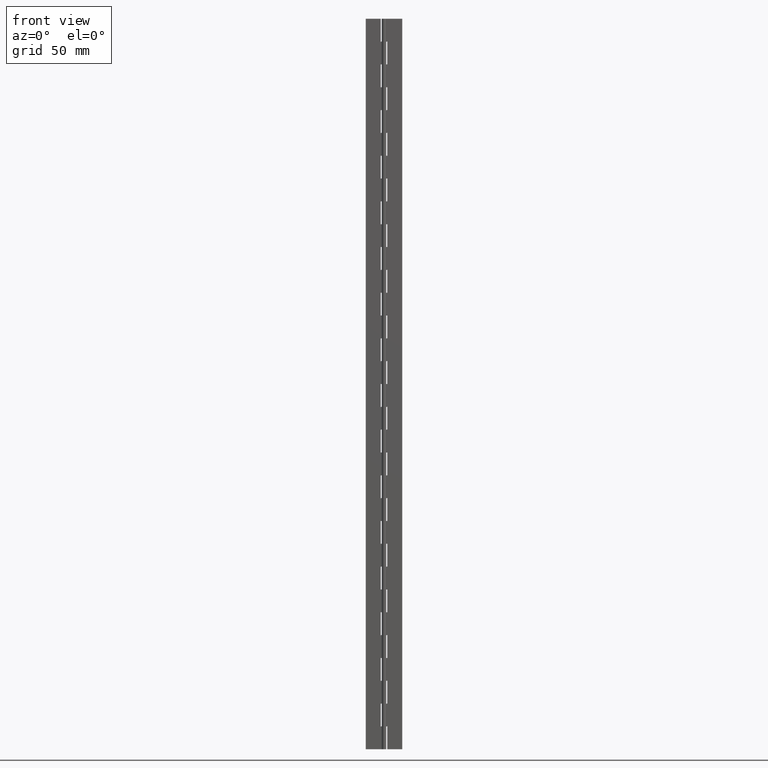
[diagram: clean part render]
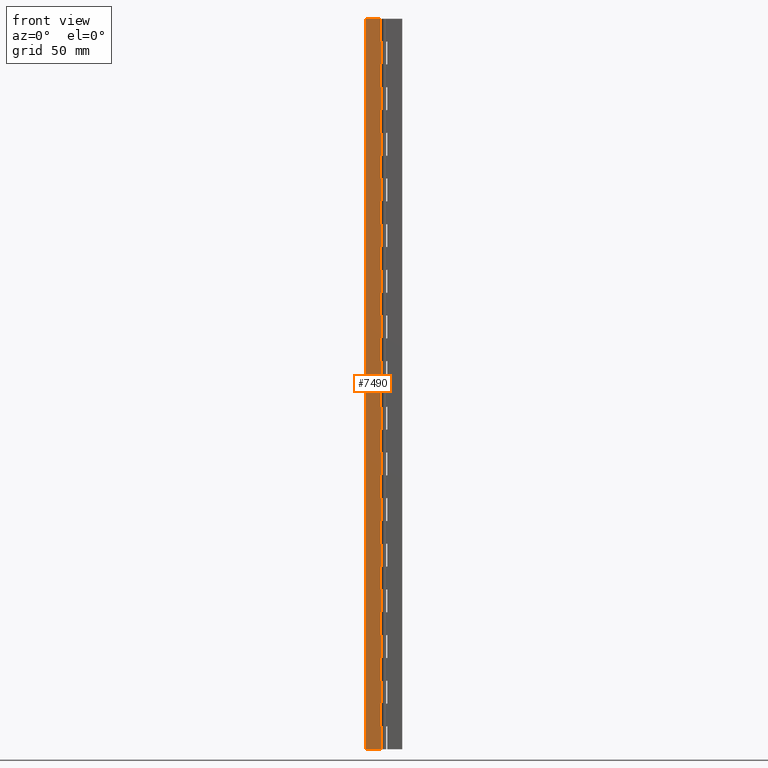
[diagram: same view with one face highlighted and labeled with its STEP entity id]
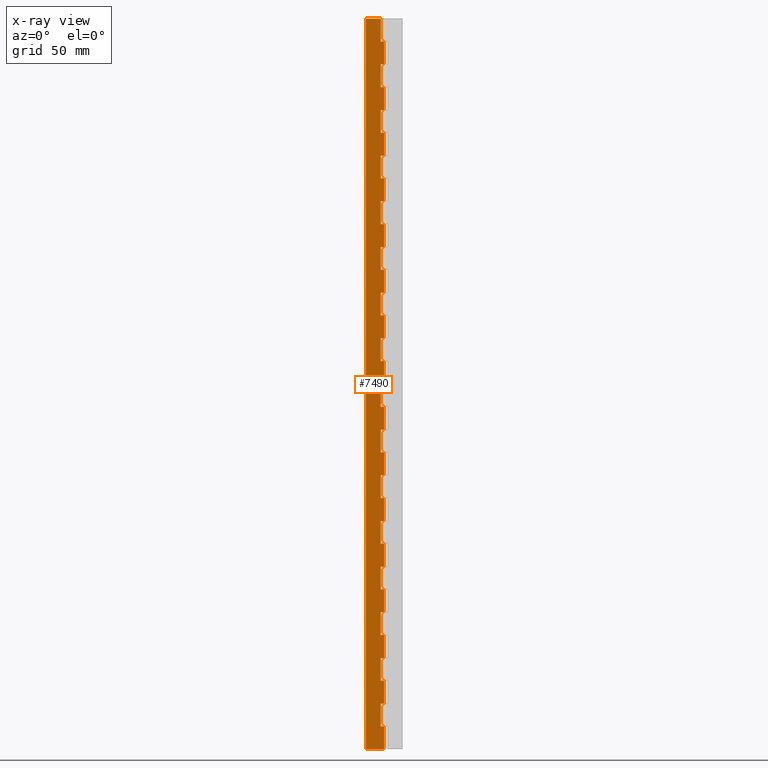
[diagram: x-ray of the same camera — body ghosted, the highlighted face saturated]
A machine part, front view. The second image highlights one B-rep face of the part: STEP entity #7490.
The next image is the same camera in x-ray: the body ghosted, the highlighted face saturated — about 0% of this face is hidden behind the body in this view.
In plain terms, the highlighted face is a freeform B-spline surface patch.
Its self-contained STEP definition (entity closure, byte-faithful):
#4516=CARTESIAN_POINT('',(-1.800003000000000,0.750000000000028,387.500000000000000));
#4517=VERTEX_POINT('',#4516);
#4523=CARTESIAN_POINT('',(4.592507E-017,0.750000000000000,387.500000000000000));
#4524=VERTEX_POINT('',#4523);
#4525=CARTESIAN_POINT('',(-1.800003000000000,0.750000000000028,387.500000000000000));
#4526=CARTESIAN_POINT('',(4.592507E-017,0.750000000000000,387.500000000000000));
#4527=QUASI_UNIFORM_CURVE('',1,(#4525,#4526),.UNSPECIFIED.,.F.,.U.);
#4528=EDGE_CURVE('',#4517,#4524,#4527,.T.);
#4564=CARTESIAN_POINT('',(-1.800003000000000,0.750000000000028,400.0));
#4565=VERTEX_POINT('',#4564);
#4566=CARTESIAN_POINT('',(-1.800003000000000,0.750000000000028,400.0));
#4567=CARTESIAN_POINT('',(-1.800003000000000,0.750000000000028,387.500000000000000));
#4568=QUASI_UNIFORM_CURVE('',1,(#4566,#4567),.UNSPECIFIED.,.F.,.U.);
#4569=EDGE_CURVE('',#4565,#4517,#4568,.T.);
#4622=CARTESIAN_POINT('',(-1.800003000000000,0.750000000000000,362.500000000000000));
#4623=VERTEX_POINT('',#4622);
#4629=CARTESIAN_POINT('',(4.592507E-017,0.750000000000000,362.500000000000000));
#4630=VERTEX_POINT('',#4629);
#4631=CARTESIAN_POINT('',(-1.800003000000000,0.750000000000000,362.500000000000000));
#4632=CARTESIAN_POINT('',(4.592507E-017,0.750000000000000,362.500000000000000));
#4633=QUASI_UNIFORM_CURVE('',1,(#4631,#4632),.UNSPECIFIED.,.F.,.U.);
#4634=EDGE_CURVE('',#4623,#4630,#4633,.T.);
#4700=CARTESIAN_POINT('',(4.592507E-017,0.750000000000000,375.0));
#4701=VERTEX_POINT('',#4700);
#4721=CARTESIAN_POINT('',(-1.800003000000000,0.750000000000028,375.0));
#4722=VERTEX_POINT('',#4721);
#4723=CARTESIAN_POINT('',(4.592507E-017,0.750000000000000,375.0));
#4724=CARTESIAN_POINT('',(-1.800003000000000,0.750000000000028,375.0));
#4725=QUASI_UNIFORM_CURVE('',1,(#4723,#4724),.UNSPECIFIED.,.F.,.U.);
#4726=EDGE_CURVE('',#4701,#4722,#4725,.T.);
#4748=CARTESIAN_POINT('',(-1.800003000000000,0.750000000000028,375.0));
#4749=CARTESIAN_POINT('',(-1.800003000000000,0.750000000000000,362.500000000000000));
#4750=QUASI_UNIFORM_CURVE('',1,(#4748,#4749),.UNSPECIFIED.,.F.,.U.);
#4751=EDGE_CURVE('',#4722,#4623,#4750,.T.);
#4798=CARTESIAN_POINT('',(-1.800003000000000,0.750000000000000,337.500000000000000));
#4799=VERTEX_POINT('',#4798);
#4805=CARTESIAN_POINT('',(4.592507E-017,0.750000000000000,337.500000000000000));
#4806=VERTEX_POINT('',#4805);
#4807=CARTESIAN_POINT('',(-1.800003000000000,0.750000000000000,337.500000000000000));
#4808=CARTESIAN_POINT('',(4.592507E-017,0.750000000000000,337.500000000000000));
#4809=QUASI_UNIFORM_CURVE('',1,(#4807,#4808),.UNSPECIFIED.,.F.,.U.);
#4810=EDGE_CURVE('',#4799,#4806,#4809,.T.);
#4876=CARTESIAN_POINT('',(4.592507E-017,0.750000000000000,350.0));
#4877=VERTEX_POINT('',#4876);
#4897=CARTESIAN_POINT('',(-1.800003000000000,0.750000000000028,350.0));
#4898=VERTEX_POINT('',#4897);
#4899=CARTESIAN_POINT('',(4.592507E-017,0.750000000000000,350.0));
#4900=CARTESIAN_POINT('',(-1.800003000000000,0.750000000000028,350.0));
#4901=QUASI_UNIFORM_CURVE('',1,(#4899,#4900),.UNSPECIFIED.,.F.,.U.);
#4902=EDGE_CURVE('',#4877,#4898,#4901,.T.);
#4924=CARTESIAN_POINT('',(-1.800003000000000,0.750000000000028,350.0));
#4925=CARTESIAN_POINT('',(-1.800003000000000,0.750000000000000,337.500000000000000));
#4926=QUASI_UNIFORM_CURVE('',1,(#4924,#4925),.UNSPECIFIED.,.F.,.U.);
#4927=EDGE_CURVE('',#4898,#4799,#4926,.T.);
#4974=CARTESIAN_POINT('',(-1.800003000000000,0.750000000000000,312.500000000000000));
#4975=VERTEX_POINT('',#4974);
#4981=CARTESIAN_POINT('',(4.592507E-017,0.750000000000000,312.500000000000000));
#4982=VERTEX_POINT('',#4981);
#4983=CARTESIAN_POINT('',(-1.800003000000000,0.750000000000000,312.500000000000000));
#4984=CARTESIAN_POINT('',(4.592507E-017,0.750000000000000,312.500000000000000));
#4985=QUASI_UNIFORM_CURVE('',1,(#4983,#4984),.UNSPECIFIED.,.F.,.U.);
#4986=EDGE_CURVE('',#4975,#4982,#4985,.T.);
#5052=CARTESIAN_POINT('',(4.592507E-017,0.750000000000000,325.0));
#5053=VERTEX_POINT('',#5052);
#5073=CARTESIAN_POINT('',(-1.800003000000000,0.750000000000028,325.0));
#5074=VERTEX_POINT('',#5073);
#5075=CARTESIAN_POINT('',(4.592507E-017,0.750000000000000,325.0));
#5076=CARTESIAN_POINT('',(-1.800003000000000,0.750000000000028,325.0));
#5077=QUASI_UNIFORM_CURVE('',1,(#5075,#5076),.UNSPECIFIED.,.F.,.U.);
#5078=EDGE_CURVE('',#5053,#5074,#5077,.T.);
#5100=CARTESIAN_POINT('',(-1.800003000000000,0.750000000000028,325.0));
#5101=CARTESIAN_POINT('',(-1.800003000000000,0.750000000000000,312.500000000000000));
#5102=QUASI_UNIFORM_CURVE('',1,(#5100,#5101),.UNSPECIFIED.,.F.,.U.);
#5103=EDGE_CURVE('',#5074,#4975,#5102,.T.);
#5150=CARTESIAN_POINT('',(-1.800003000000000,0.750000000000000,287.500000000000000));
#5151=VERTEX_POINT('',#5150);
#5157=CARTESIAN_POINT('',(4.592507E-017,0.750000000000000,287.500000000000000));
#5158=VERTEX_POINT('',#5157);
#5159=CARTESIAN_POINT('',(-1.800003000000000,0.750000000000000,287.500000000000000));
#5160=CARTESIAN_POINT('',(4.592507E-017,0.750000000000000,287.500000000000000));
#5161=QUASI_UNIFORM_CURVE('',1,(#5159,#5160),.UNSPECIFIED.,.F.,.U.);
#5162=EDGE_CURVE('',#5151,#5158,#5161,.T.);
#5228=CARTESIAN_POINT('',(4.592507E-017,0.750000000000000,300.0));
#5229=VERTEX_POINT('',#5228);
#5249=CARTESIAN_POINT('',(-1.800003000000000,0.750000000000028,300.0));
#5250=VERTEX_POINT('',#5249);
#5251=CARTESIAN_POINT('',(4.592507E-017,0.750000000000000,300.0));
#5252=CARTESIAN_POINT('',(-1.800003000000000,0.750000000000028,300.0));
#5253=QUASI_UNIFORM_CURVE('',1,(#5251,#5252),.UNSPECIFIED.,.F.,.U.);
#5254=EDGE_CURVE('',#5229,#5250,#5253,.T.);
#5276=CARTESIAN_POINT('',(-1.800003000000000,0.750000000000028,300.0));
#5277=CARTESIAN_POINT('',(-1.800003000000000,0.750000000000000,287.500000000000000));
#5278=QUASI_UNIFORM_CURVE('',1,(#5276,#5277),.UNSPECIFIED.,.F.,.U.);
#5279=EDGE_CURVE('',#5250,#5151,#5278,.T.);
#5326=CARTESIAN_POINT('',(-1.800003000000000,0.750000000000000,262.500000000000000));
#5327=VERTEX_POINT('',#5326);
#5333=CARTESIAN_POINT('',(4.592507E-017,0.750000000000000,262.500000000000000));
#5334=VERTEX_POINT('',#5333);
#5335=CARTESIAN_POINT('',(-1.800003000000000,0.750000000000000,262.500000000000000));
#5336=CARTESIAN_POINT('',(4.592507E-017,0.750000000000000,262.500000000000000));
#5337=QUASI_UNIFORM_CURVE('',1,(#5335,#5336),.UNSPECIFIED.,.F.,.U.);
#5338=EDGE_CURVE('',#5327,#5334,#5337,.T.);
#5404=CARTESIAN_POINT('',(4.592507E-017,0.750000000000000,275.0));
#5405=VERTEX_POINT('',#5404);
#5425=CARTESIAN_POINT('',(-1.800003000000000,0.750000000000028,275.0));
#5426=VERTEX_POINT('',#5425);
#5427=CARTESIAN_POINT('',(4.592507E-017,0.750000000000000,275.0));
#5428=CARTESIAN_POINT('',(-1.800003000000000,0.750000000000028,275.0));
#5429=QUASI_UNIFORM_CURVE('',1,(#5427,#5428),.UNSPECIFIED.,.F.,.U.);
#5430=EDGE_CURVE('',#5405,#5426,#5429,.T.);
#5452=CARTESIAN_POINT('',(-1.800003000000000,0.750000000000028,275.0));
#5453=CARTESIAN_POINT('',(-1.800003000000000,0.750000000000000,262.500000000000000));
#5454=QUASI_UNIFORM_CURVE('',1,(#5452,#5453),.UNSPECIFIED.,.F.,.U.);
#5455=EDGE_CURVE('',#5426,#5327,#5454,.T.);
#5502=CARTESIAN_POINT('',(-1.800003000000000,0.750000000000000,237.500000000000000));
#5503=VERTEX_POINT('',#5502);
#5509=CARTESIAN_POINT('',(4.592507E-017,0.750000000000000,237.500000000000000));
#5510=VERTEX_POINT('',#5509);
#5511=CARTESIAN_POINT('',(-1.800003000000000,0.750000000000000,237.500000000000000));
#5512=CARTESIAN_POINT('',(4.592507E-017,0.750000000000000,237.500000000000000));
#5513=QUASI_UNIFORM_CURVE('',1,(#5511,#5512),.UNSPECIFIED.,.F.,.U.);
#5514=EDGE_CURVE('',#5503,#5510,#5513,.T.);
#5580=CARTESIAN_POINT('',(4.592507E-017,0.750000000000000,250.0));
#5581=VERTEX_POINT('',#5580);
#5601=CARTESIAN_POINT('',(-1.800003000000000,0.750000000000028,250.0));
#5602=VERTEX_POINT('',#5601);
#5603=CARTESIAN_POINT('',(4.592507E-017,0.750000000000000,250.0));
#5604=CARTESIAN_POINT('',(-1.800003000000000,0.750000000000028,250.0));
#5605=QUASI_UNIFORM_CURVE('',1,(#5603,#5604),.UNSPECIFIED.,.F.,.U.);
#5606=EDGE_CURVE('',#5581,#5602,#5605,.T.);
#5628=CARTESIAN_POINT('',(-1.800003000000000,0.750000000000028,250.0));
#5629=CARTESIAN_POINT('',(-1.800003000000000,0.750000000000000,237.500000000000000));
#5630=QUASI_UNIFORM_CURVE('',1,(#5628,#5629),.UNSPECIFIED.,.F.,.U.);
#5631=EDGE_CURVE('',#5602,#5503,#5630,.T.);
#5678=CARTESIAN_POINT('',(-1.800003000000000,0.750000000000000,212.500000000000000));
#5679=VERTEX_POINT('',#5678);
#5685=CARTESIAN_POINT('',(4.592507E-017,0.750000000000000,212.500000000000000));
#5686=VERTEX_POINT('',#5685);
#5687=CARTESIAN_POINT('',(-1.800003000000000,0.750000000000000,212.500000000000000));
#5688=CARTESIAN_POINT('',(4.592507E-017,0.750000000000000,212.500000000000000));
#5689=QUASI_UNIFORM_CURVE('',1,(#5687,#5688),.UNSPECIFIED.,.F.,.U.);
#5690=EDGE_CURVE('',#5679,#5686,#5689,.T.);
#5756=CARTESIAN_POINT('',(4.592507E-017,0.750000000000000,225.0));
#5757=VERTEX_POINT('',#5756);
#5777=CARTESIAN_POINT('',(-1.800003000000000,0.750000000000028,225.0));
#5778=VERTEX_POINT('',#5777);
#5779=CARTESIAN_POINT('',(4.592507E-017,0.750000000000000,225.0));
#5780=CARTESIAN_POINT('',(-1.800003000000000,0.750000000000028,225.0));
#5781=QUASI_UNIFORM_CURVE('',1,(#5779,#5780),.UNSPECIFIED.,.F.,.U.);
#5782=EDGE_CURVE('',#5757,#5778,#5781,.T.);
#5804=CARTESIAN_POINT('',(-1.800003000000000,0.750000000000028,225.0));
#5805=CARTESIAN_POINT('',(-1.800003000000000,0.750000000000000,212.500000000000000));
#5806=QUASI_UNIFORM_CURVE('',1,(#5804,#5805),.UNSPECIFIED.,.F.,.U.);
#5807=EDGE_CURVE('',#5778,#5679,#5806,.T.);
#5854=CARTESIAN_POINT('',(-1.800003000000000,0.750000000000000,187.500000000000000));
#5855=VERTEX_POINT('',#5854);
#5861=CARTESIAN_POINT('',(4.592507E-017,0.750000000000000,187.500000000000000));
#5862=VERTEX_POINT('',#5861);
#5863=CARTESIAN_POINT('',(-1.800003000000000,0.750000000000000,187.500000000000000));
#5864=CARTESIAN_POINT('',(4.592507E-017,0.750000000000000,187.500000000000000));
#5865=QUASI_UNIFORM_CURVE('',1,(#5863,#5864),.UNSPECIFIED.,.F.,.U.);
#5866=EDGE_CURVE('',#5855,#5862,#5865,.T.);
#5932=CARTESIAN_POINT('',(4.592507E-017,0.750000000000000,200.0));
#5933=VERTEX_POINT('',#5932);
#5953=CARTESIAN_POINT('',(-1.800003000000000,0.750000000000028,200.0));
#5954=VERTEX_POINT('',#5953);
#5955=CARTESIAN_POINT('',(4.592507E-017,0.750000000000000,200.0));
#5956=CARTESIAN_POINT('',(-1.800003000000000,0.750000000000028,200.0));
#5957=QUASI_UNIFORM_CURVE('',1,(#5955,#5956),.UNSPECIFIED.,.F.,.U.);
#5958=EDGE_CURVE('',#5933,#5954,#5957,.T.);
#5980=CARTESIAN_POINT('',(-1.800003000000000,0.750000000000028,200.0));
#5981=CARTESIAN_POINT('',(-1.800003000000000,0.750000000000000,187.500000000000000));
#5982=QUASI_UNIFORM_CURVE('',1,(#5980,#5981),.UNSPECIFIED.,.F.,.U.);
#5983=EDGE_CURVE('',#5954,#5855,#5982,.T.);
#6030=CARTESIAN_POINT('',(-1.800003000000000,0.750000000000000,162.500000000000000));
#6031=VERTEX_POINT('',#6030);
#6037=CARTESIAN_POINT('',(4.592507E-017,0.750000000000000,162.500000000000000));
#6038=VERTEX_POINT('',#6037);
#6039=CARTESIAN_POINT('',(-1.800003000000000,0.750000000000000,162.500000000000000));
#6040=CARTESIAN_POINT('',(4.592507E-017,0.750000000000000,162.500000000000000));
#6041=QUASI_UNIFORM_CURVE('',1,(#6039,#6040),.UNSPECIFIED.,.F.,.U.);
#6042=EDGE_CURVE('',#6031,#6038,#6041,.T.);
#6108=CARTESIAN_POINT('',(4.592507E-017,0.750000000000000,175.0));
#6109=VERTEX_POINT('',#6108);
#6129=CARTESIAN_POINT('',(-1.800003000000000,0.750000000000028,175.0));
#6130=VERTEX_POINT('',#6129);
#6131=CARTESIAN_POINT('',(4.592507E-017,0.750000000000000,175.0));
#6132=CARTESIAN_POINT('',(-1.800003000000000,0.750000000000028,175.0));
#6133=QUASI_UNIFORM_CURVE('',1,(#6131,#6132),.UNSPECIFIED.,.F.,.U.);
#6134=EDGE_CURVE('',#6109,#6130,#6133,.T.);
#6156=CARTESIAN_POINT('',(-1.800003000000000,0.750000000000028,175.0));
#6157=CARTESIAN_POINT('',(-1.800003000000000,0.750000000000000,162.500000000000000));
#6158=QUASI_UNIFORM_CURVE('',1,(#6156,#6157),.UNSPECIFIED.,.F.,.U.);
#6159=EDGE_CURVE('',#6130,#6031,#6158,.T.);
#6206=CARTESIAN_POINT('',(-1.800003000000000,0.750000000000000,137.500000000000000));
#6207=VERTEX_POINT('',#6206);
#6213=CARTESIAN_POINT('',(4.592507E-017,0.750000000000000,137.500000000000000));
#6214=VERTEX_POINT('',#6213);
#6215=CARTESIAN_POINT('',(-1.800003000000000,0.750000000000000,137.500000000000000));
#6216=CARTESIAN_POINT('',(4.592507E-017,0.750000000000000,137.500000000000000));
#6217=QUASI_UNIFORM_CURVE('',1,(#6215,#6216),.UNSPECIFIED.,.F.,.U.);
#6218=EDGE_CURVE('',#6207,#6214,#6217,.T.);
#6284=CARTESIAN_POINT('',(4.592507E-017,0.750000000000000,150.0));
#6285=VERTEX_POINT('',#6284);
#6305=CARTESIAN_POINT('',(-1.800003000000000,0.750000000000028,150.0));
#6306=VERTEX_POINT('',#6305);
#6307=CARTESIAN_POINT('',(4.592507E-017,0.750000000000000,150.0));
#6308=CARTESIAN_POINT('',(-1.800003000000000,0.750000000000028,150.0));
#6309=QUASI_UNIFORM_CURVE('',1,(#6307,#6308),.UNSPECIFIED.,.F.,.U.);
#6310=EDGE_CURVE('',#6285,#6306,#6309,.T.);
#6332=CARTESIAN_POINT('',(-1.800003000000000,0.750000000000028,150.0));
#6333=CARTESIAN_POINT('',(-1.800003000000000,0.750000000000000,137.500000000000000));
#6334=QUASI_UNIFORM_CURVE('',1,(#6332,#6333),.UNSPECIFIED.,.F.,.U.);
#6335=EDGE_CURVE('',#6306,#6207,#6334,.T.);
#6382=CARTESIAN_POINT('',(-1.800003000000000,0.750000000000000,112.500000000000000));
#6383=VERTEX_POINT('',#6382);
#6389=CARTESIAN_POINT('',(4.592507E-017,0.750000000000000,112.500000000000000));
#6390=VERTEX_POINT('',#6389);
#6391=CARTESIAN_POINT('',(-1.800003000000000,0.750000000000000,112.500000000000000));
#6392=CARTESIAN_POINT('',(4.592507E-017,0.750000000000000,112.500000000000000));
#6393=QUASI_UNIFORM_CURVE('',1,(#6391,#6392),.UNSPECIFIED.,.F.,.U.);
#6394=EDGE_CURVE('',#6383,#6390,#6393,.T.);
#6460=CARTESIAN_POINT('',(4.592507E-017,0.750000000000000,125.0));
#6461=VERTEX_POINT('',#6460);
#6481=CARTESIAN_POINT('',(-1.800003000000000,0.750000000000028,125.0));
#6482=VERTEX_POINT('',#6481);
#6483=CARTESIAN_POINT('',(4.592507E-017,0.750000000000000,125.0));
#6484=CARTESIAN_POINT('',(-1.800003000000000,0.750000000000028,125.0));
#6485=QUASI_UNIFORM_CURVE('',1,(#6483,#6484),.UNSPECIFIED.,.F.,.U.);
#6486=EDGE_CURVE('',#6461,#6482,#6485,.T.);
#6508=CARTESIAN_POINT('',(-1.800003000000000,0.750000000000028,125.0));
#6509=CARTESIAN_POINT('',(-1.800003000000000,0.750000000000000,112.500000000000000));
#6510=QUASI_UNIFORM_CURVE('',1,(#6508,#6509),.UNSPECIFIED.,.F.,.U.);
#6511=EDGE_CURVE('',#6482,#6383,#6510,.T.);
#6558=CARTESIAN_POINT('',(-1.800003000000000,0.750000000000000,87.500000000000000));
#6559=VERTEX_POINT('',#6558);
#6565=CARTESIAN_POINT('',(4.592507E-017,0.750000000000000,87.500000000000000));
#6566=VERTEX_POINT('',#6565);
#6567=CARTESIAN_POINT('',(-1.800003000000000,0.750000000000000,87.500000000000000));
#6568=CARTESIAN_POINT('',(4.592507E-017,0.750000000000000,87.500000000000000));
#6569=QUASI_UNIFORM_CURVE('',1,(#6567,#6568),.UNSPECIFIED.,.F.,.U.);
#6570=EDGE_CURVE('',#6559,#6566,#6569,.T.);
#6636=CARTESIAN_POINT('',(4.592507E-017,0.750000000000000,100.0));
#6637=VERTEX_POINT('',#6636);
#6657=CARTESIAN_POINT('',(-1.800003000000000,0.750000000000028,100.0));
#6658=VERTEX_POINT('',#6657);
#6659=CARTESIAN_POINT('',(4.592507E-017,0.750000000000000,100.0));
#6660=CARTESIAN_POINT('',(-1.800003000000000,0.750000000000028,100.0));
#6661=QUASI_UNIFORM_CURVE('',1,(#6659,#6660),.UNSPECIFIED.,.F.,.U.);
#6662=EDGE_CURVE('',#6637,#6658,#6661,.T.);
#6684=CARTESIAN_POINT('',(-1.800003000000000,0.750000000000028,100.0));
#6685=CARTESIAN_POINT('',(-1.800003000000000,0.750000000000000,87.500000000000000));
#6686=QUASI_UNIFORM_CURVE('',1,(#6684,#6685),.UNSPECIFIED.,.F.,.U.);
#6687=EDGE_CURVE('',#6658,#6559,#6686,.T.);
#6734=CARTESIAN_POINT('',(-1.800003000000000,0.750000000000000,62.500000000000000));
#6735=VERTEX_POINT('',#6734);
#6741=CARTESIAN_POINT('',(4.592507E-017,0.750000000000000,62.500000000000000));
#6742=VERTEX_POINT('',#6741);
#6743=CARTESIAN_POINT('',(-1.800003000000000,0.750000000000000,62.500000000000000));
#6744=CARTESIAN_POINT('',(4.592507E-017,0.750000000000000,62.500000000000000));
#6745=QUASI_UNIFORM_CURVE('',1,(#6743,#6744),.UNSPECIFIED.,.F.,.U.);
#6746=EDGE_CURVE('',#6735,#6742,#6745,.T.);
#6812=CARTESIAN_POINT('',(4.592507E-017,0.750000000000000,75.0));
#6813=VERTEX_POINT('',#6812);
#6833=CARTESIAN_POINT('',(-1.800003000000000,0.750000000000028,75.0));
#6834=VERTEX_POINT('',#6833);
#6835=CARTESIAN_POINT('',(4.592507E-017,0.750000000000000,75.0));
#6836=CARTESIAN_POINT('',(-1.800003000000000,0.750000000000028,75.0));
#6837=QUASI_UNIFORM_CURVE('',1,(#6835,#6836),.UNSPECIFIED.,.F.,.U.);
#6838=EDGE_CURVE('',#6813,#6834,#6837,.T.);
#6860=CARTESIAN_POINT('',(-1.800003000000000,0.750000000000028,75.0));
#6861=CARTESIAN_POINT('',(-1.800003000000000,0.750000000000000,62.500000000000000));
#6862=QUASI_UNIFORM_CURVE('',1,(#6860,#6861),.UNSPECIFIED.,.F.,.U.);
#6863=EDGE_CURVE('',#6834,#6735,#6862,.T.);
#6910=CARTESIAN_POINT('',(-1.800003000000000,0.750000000000000,37.500000000000000));
#6911=VERTEX_POINT('',#6910);
#6917=CARTESIAN_POINT('',(4.592507E-017,0.750000000000000,37.500000000000000));
#6918=VERTEX_POINT('',#6917);
#6919=CARTESIAN_POINT('',(-1.800003000000000,0.750000000000000,37.500000000000000));
#6920=CARTESIAN_POINT('',(4.592507E-017,0.750000000000000,37.500000000000000));
#6921=QUASI_UNIFORM_CURVE('',1,(#6919,#6920),.UNSPECIFIED.,.F.,.U.);
#6922=EDGE_CURVE('',#6911,#6918,#6921,.T.);
#6988=CARTESIAN_POINT('',(4.592507E-017,0.750000000000000,50.0));
#6989=VERTEX_POINT('',#6988);
#7009=CARTESIAN_POINT('',(-1.800003000000000,0.750000000000028,50.0));
#7010=VERTEX_POINT('',#7009);
#7011=CARTESIAN_POINT('',(4.592507E-017,0.750000000000000,50.0));
#7012=CARTESIAN_POINT('',(-1.800003000000000,0.750000000000028,50.0));
#7013=QUASI_UNIFORM_CURVE('',1,(#7011,#7012),.UNSPECIFIED.,.F.,.U.);
#7014=EDGE_CURVE('',#6989,#7010,#7013,.T.);
#7036=CARTESIAN_POINT('',(-1.800003000000000,0.750000000000028,50.0));
#7037=CARTESIAN_POINT('',(-1.800003000000000,0.750000000000000,37.500000000000000));
#7038=QUASI_UNIFORM_CURVE('',1,(#7036,#7037),.UNSPECIFIED.,.F.,.U.);
#7039=EDGE_CURVE('',#7010,#6911,#7038,.T.);
#7086=CARTESIAN_POINT('',(-1.800003000000000,0.750000000000000,12.500000000000000));
#7087=VERTEX_POINT('',#7086);
#7093=CARTESIAN_POINT('',(4.592507E-017,0.750000000000000,12.500000000000000));
#7094=VERTEX_POINT('',#7093);
#7095=CARTESIAN_POINT('',(-1.800003000000000,0.750000000000000,12.500000000000000));
#7096=CARTESIAN_POINT('',(4.592507E-017,0.750000000000000,12.500000000000000));
#7097=QUASI_UNIFORM_CURVE('',1,(#7095,#7096),.UNSPECIFIED.,.F.,.U.);
#7098=EDGE_CURVE('',#7087,#7094,#7097,.T.);
#7164=CARTESIAN_POINT('',(4.592507E-017,0.750000000000000,25.0));
#7165=VERTEX_POINT('',#7164);
#7185=CARTESIAN_POINT('',(-1.800003000000000,0.750000000000028,25.0));
#7186=VERTEX_POINT('',#7185);
#7187=CARTESIAN_POINT('',(4.592507E-017,0.750000000000000,25.0));
#7188=CARTESIAN_POINT('',(-1.800003000000000,0.750000000000028,25.0));
#7189=QUASI_UNIFORM_CURVE('',1,(#7187,#7188),.UNSPECIFIED.,.F.,.U.);
#7190=EDGE_CURVE('',#7165,#7186,#7189,.T.);
#7212=CARTESIAN_POINT('',(-1.800003000000000,0.750000000000028,25.0));
#7213=CARTESIAN_POINT('',(-1.800003000000000,0.750000000000000,12.500000000000000));
#7214=QUASI_UNIFORM_CURVE('',1,(#7212,#7213),.UNSPECIFIED.,.F.,.U.);
#7215=EDGE_CURVE('',#7186,#7087,#7214,.T.);
#7269=CARTESIAN_POINT('',(4.592274E-017,0.750000000000000,0.0));
#7270=VERTEX_POINT('',#7269);
#7290=CARTESIAN_POINT('',(-10.0,0.750000000000000,0.0));
#7291=VERTEX_POINT('',#7290);
#7292=CARTESIAN_POINT('',(4.592274E-017,0.750000000000000,0.0));
#7293=CARTESIAN_POINT('',(-10.0,0.750000000000000,0.0));
#7294=QUASI_UNIFORM_CURVE('',1,(#7292,#7293),.UNSPECIFIED.,.F.,.U.);
#7295=EDGE_CURVE('',#7270,#7291,#7294,.T.);
#7310=CARTESIAN_POINT('',(-10.0,0.750000000000000,400.0));
#7311=VERTEX_POINT('',#7310);
#7312=CARTESIAN_POINT('',(-1.800003000000000,0.750000000000028,400.0));
#7313=CARTESIAN_POINT('',(-10.0,0.750000000000000,400.0));
#7314=QUASI_UNIFORM_CURVE('',1,(#7312,#7313),.UNSPECIFIED.,.F.,.U.);
#7315=EDGE_CURVE('',#4565,#7311,#7314,.T.);
#7339=CARTESIAN_POINT('',(-10.0,0.750000000000000,400.0));
#7340=CARTESIAN_POINT('',(-10.0,0.750000000000000,0.0));
#7341=QUASI_UNIFORM_CURVE('',1,(#7339,#7340),.UNSPECIFIED.,.F.,.U.);
#7342=EDGE_CURVE('',#7311,#7291,#7341,.T.);
#7353=CARTESIAN_POINT('',(-10.499499980618060,0.750000000000000,419.979999224722410));
#7354=CARTESIAN_POINT('',(-10.499499980618060,0.750000000000000,-19.980009953558440));
#7355=CARTESIAN_POINT('',(0.499500248838961,0.750000000000000,419.979999224722410));
#7356=CARTESIAN_POINT('',(0.499500248838961,0.750000000000000,-19.980009953558440));
#7357=B_SPLINE_SURFACE_WITH_KNOTS('',1,1,((#7353,#7355),(#7354,#7356)),.UNSPECIFIED.,.F.,.F.,.U.,(2,2),(2,2),(0.0,439.960009178280930),(0.0,10.999000229457019),.UNSPECIFIED.);
#7358=ORIENTED_EDGE('',*,*,#4569,.F.);
#7359=ORIENTED_EDGE('',*,*,#7315,.T.);
#7360=ORIENTED_EDGE('',*,*,#7342,.T.);
#7361=ORIENTED_EDGE('',*,*,#7295,.F.);
#7362=CARTESIAN_POINT('',(4.592507E-017,0.750000000000000,12.500000000000000));
#7363=CARTESIAN_POINT('',(4.592274E-017,0.750000000000000,0.0));
#7364=QUASI_UNIFORM_CURVE('',1,(#7362,#7363),.UNSPECIFIED.,.F.,.U.);
#7365=EDGE_CURVE('',#7094,#7270,#7364,.T.);
#7366=ORIENTED_EDGE('',*,*,#7365,.F.);
#7367=ORIENTED_EDGE('',*,*,#7098,.F.);
#7368=ORIENTED_EDGE('',*,*,#7215,.F.);
#7369=ORIENTED_EDGE('',*,*,#7190,.F.);
#7370=CARTESIAN_POINT('',(4.592507E-017,0.750000000000000,37.500000000000000));
#7371=CARTESIAN_POINT('',(4.592507E-017,0.750000000000000,25.0));
#7372=QUASI_UNIFORM_CURVE('',1,(#7370,#7371),.UNSPECIFIED.,.F.,.U.);
#7373=EDGE_CURVE('',#6918,#7165,#7372,.T.);
#7374=ORIENTED_EDGE('',*,*,#7373,.F.);
#7375=ORIENTED_EDGE('',*,*,#6922,.F.);
#7376=ORIENTED_EDGE('',*,*,#7039,.F.);
#7377=ORIENTED_EDGE('',*,*,#7014,.F.);
#7378=CARTESIAN_POINT('',(4.592507E-017,0.750000000000000,62.500000000000000));
#7379=CARTESIAN_POINT('',(4.592507E-017,0.750000000000000,50.0));
#7380=QUASI_UNIFORM_CURVE('',1,(#7378,#7379),.UNSPECIFIED.,.F.,.U.);
#7381=EDGE_CURVE('',#6742,#6989,#7380,.T.);
#7382=ORIENTED_EDGE('',*,*,#7381,.F.);
#7383=ORIENTED_EDGE('',*,*,#6746,.F.);
#7384=ORIENTED_EDGE('',*,*,#6863,.F.);
#7385=ORIENTED_EDGE('',*,*,#6838,.F.);
#7386=CARTESIAN_POINT('',(4.592507E-017,0.750000000000000,87.500000000000000));
#7387=CARTESIAN_POINT('',(4.592507E-017,0.750000000000000,75.0));
#7388=QUASI_UNIFORM_CURVE('',1,(#7386,#7387),.UNSPECIFIED.,.F.,.U.);
#7389=EDGE_CURVE('',#6566,#6813,#7388,.T.);
#7390=ORIENTED_EDGE('',*,*,#7389,.F.);
#7391=ORIENTED_EDGE('',*,*,#6570,.F.);
#7392=ORIENTED_EDGE('',*,*,#6687,.F.);
#7393=ORIENTED_EDGE('',*,*,#6662,.F.);
#7394=CARTESIAN_POINT('',(4.592507E-017,0.750000000000000,112.500000000000000));
#7395=CARTESIAN_POINT('',(4.592507E-017,0.750000000000000,100.0));
#7396=QUASI_UNIFORM_CURVE('',1,(#7394,#7395),.UNSPECIFIED.,.F.,.U.);
#7397=EDGE_CURVE('',#6390,#6637,#7396,.T.);
#7398=ORIENTED_EDGE('',*,*,#7397,.F.);
#7399=ORIENTED_EDGE('',*,*,#6394,.F.);
#7400=ORIENTED_EDGE('',*,*,#6511,.F.);
#7401=ORIENTED_EDGE('',*,*,#6486,.F.);
#7402=CARTESIAN_POINT('',(4.592507E-017,0.750000000000000,137.500000000000000));
#7403=CARTESIAN_POINT('',(4.592507E-017,0.750000000000000,125.0));
#7404=QUASI_UNIFORM_CURVE('',1,(#7402,#7403),.UNSPECIFIED.,.F.,.U.);
#7405=EDGE_CURVE('',#6214,#6461,#7404,.T.);
#7406=ORIENTED_EDGE('',*,*,#7405,.F.);
#7407=ORIENTED_EDGE('',*,*,#6218,.F.);
#7408=ORIENTED_EDGE('',*,*,#6335,.F.);
#7409=ORIENTED_EDGE('',*,*,#6310,.F.);
#7410=CARTESIAN_POINT('',(4.592507E-017,0.750000000000000,162.500000000000000));
#7411=CARTESIAN_POINT('',(4.592507E-017,0.750000000000000,150.0));
#7412=QUASI_UNIFORM_CURVE('',1,(#7410,#7411),.UNSPECIFIED.,.F.,.U.);
#7413=EDGE_CURVE('',#6038,#6285,#7412,.T.);
#7414=ORIENTED_EDGE('',*,*,#7413,.F.);
#7415=ORIENTED_EDGE('',*,*,#6042,.F.);
#7416=ORIENTED_EDGE('',*,*,#6159,.F.);
#7417=ORIENTED_EDGE('',*,*,#6134,.F.);
#7418=CARTESIAN_POINT('',(4.592507E-017,0.750000000000000,187.500000000000000));
#7419=CARTESIAN_POINT('',(4.592507E-017,0.750000000000000,175.0));
#7420=QUASI_UNIFORM_CURVE('',1,(#7418,#7419),.UNSPECIFIED.,.F.,.U.);
#7421=EDGE_CURVE('',#5862,#6109,#7420,.T.);
#7422=ORIENTED_EDGE('',*,*,#7421,.F.);
#7423=ORIENTED_EDGE('',*,*,#5866,.F.);
#7424=ORIENTED_EDGE('',*,*,#5983,.F.);
#7425=ORIENTED_EDGE('',*,*,#5958,.F.);
#7426=CARTESIAN_POINT('',(4.592507E-017,0.750000000000000,212.500000000000000));
#7427=CARTESIAN_POINT('',(4.592507E-017,0.750000000000000,200.0));
#7428=QUASI_UNIFORM_CURVE('',1,(#7426,#7427),.UNSPECIFIED.,.F.,.U.);
#7429=EDGE_CURVE('',#5686,#5933,#7428,.T.);
#7430=ORIENTED_EDGE('',*,*,#7429,.F.);
#7431=ORIENTED_EDGE('',*,*,#5690,.F.);
#7432=ORIENTED_EDGE('',*,*,#5807,.F.);
#7433=ORIENTED_EDGE('',*,*,#5782,.F.);
#7434=CARTESIAN_POINT('',(4.592507E-017,0.750000000000000,237.500000000000000));
#7435=CARTESIAN_POINT('',(4.592507E-017,0.750000000000000,225.0));
#7436=QUASI_UNIFORM_CURVE('',1,(#7434,#7435),.UNSPECIFIED.,.F.,.U.);
#7437=EDGE_CURVE('',#5510,#5757,#7436,.T.);
#7438=ORIENTED_EDGE('',*,*,#7437,.F.);
#7439=ORIENTED_EDGE('',*,*,#5514,.F.);
#7440=ORIENTED_EDGE('',*,*,#5631,.F.);
#7441=ORIENTED_EDGE('',*,*,#5606,.F.);
#7442=CARTESIAN_POINT('',(4.592507E-017,0.750000000000000,262.500000000000000));
#7443=CARTESIAN_POINT('',(4.592507E-017,0.750000000000000,250.0));
#7444=QUASI_UNIFORM_CURVE('',1,(#7442,#7443),.UNSPECIFIED.,.F.,.U.);
#7445=EDGE_CURVE('',#5334,#5581,#7444,.T.);
#7446=ORIENTED_EDGE('',*,*,#7445,.F.);
#7447=ORIENTED_EDGE('',*,*,#5338,.F.);
#7448=ORIENTED_EDGE('',*,*,#5455,.F.);
#7449=ORIENTED_EDGE('',*,*,#5430,.F.);
#7450=CARTESIAN_POINT('',(4.592507E-017,0.750000000000000,287.500000000000000));
#7451=CARTESIAN_POINT('',(4.592507E-017,0.750000000000000,275.0));
#7452=QUASI_UNIFORM_CURVE('',1,(#7450,#7451),.UNSPECIFIED.,.F.,.U.);
#7453=EDGE_CURVE('',#5158,#5405,#7452,.T.);
#7454=ORIENTED_EDGE('',*,*,#7453,.F.);
#7455=ORIENTED_EDGE('',*,*,#5162,.F.);
#7456=ORIENTED_EDGE('',*,*,#5279,.F.);
#7457=ORIENTED_EDGE('',*,*,#5254,.F.);
#7458=CARTESIAN_POINT('',(4.592507E-017,0.750000000000000,312.500000000000000));
#7459=CARTESIAN_POINT('',(4.592507E-017,0.750000000000000,300.0));
#7460=QUASI_UNIFORM_CURVE('',1,(#7458,#7459),.UNSPECIFIED.,.F.,.U.);
#7461=EDGE_CURVE('',#4982,#5229,#7460,.T.);
#7462=ORIENTED_EDGE('',*,*,#7461,.F.);
#7463=ORIENTED_EDGE('',*,*,#4986,.F.);
#7464=ORIENTED_EDGE('',*,*,#5103,.F.);
#7465=ORIENTED_EDGE('',*,*,#5078,.F.);
#7466=CARTESIAN_POINT('',(4.592507E-017,0.750000000000000,337.500000000000000));
#7467=CARTESIAN_POINT('',(4.592507E-017,0.750000000000000,325.0));
#7468=QUASI_UNIFORM_CURVE('',1,(#7466,#7467),.UNSPECIFIED.,.F.,.U.);
#7469=EDGE_CURVE('',#4806,#5053,#7468,.T.);
#7470=ORIENTED_EDGE('',*,*,#7469,.F.);
#7471=ORIENTED_EDGE('',*,*,#4810,.F.);
#7472=ORIENTED_EDGE('',*,*,#4927,.F.);
#7473=ORIENTED_EDGE('',*,*,#4902,.F.);
#7474=CARTESIAN_POINT('',(4.592507E-017,0.750000000000000,362.500000000000000));
#7475=CARTESIAN_POINT('',(4.592507E-017,0.750000000000000,350.0));
#7476=QUASI_UNIFORM_CURVE('',1,(#7474,#7475),.UNSPECIFIED.,.F.,.U.);
#7477=EDGE_CURVE('',#4630,#4877,#7476,.T.);
#7478=ORIENTED_EDGE('',*,*,#7477,.F.);
#7479=ORIENTED_EDGE('',*,*,#4634,.F.);
#7480=ORIENTED_EDGE('',*,*,#4751,.F.);
#7481=ORIENTED_EDGE('',*,*,#4726,.F.);
#7482=CARTESIAN_POINT('',(4.592507E-017,0.750000000000000,387.500000000000000));
#7483=CARTESIAN_POINT('',(4.592507E-017,0.750000000000000,375.0));
#7484=QUASI_UNIFORM_CURVE('',1,(#7482,#7483),.UNSPECIFIED.,.F.,.U.);
#7485=EDGE_CURVE('',#4524,#4701,#7484,.T.);
#7486=ORIENTED_EDGE('',*,*,#7485,.F.);
#7487=ORIENTED_EDGE('',*,*,#4528,.F.);
#7488=EDGE_LOOP('',(#7358,#7359,#7360,#7361,#7366,#7367,#7368,#7369,#7374,#7375,#7376,#7377,#7382,#7383,#7384,#7385,#7390,#7391,#7392,#7393,#7398,#7399,#7400,#7401,#7406,#7407,#7408,#7409,#7414,#7415,#7416,#7417,#7422,#7423,#7424,#7425,#7430,#7431,#7432,#7433,#7438,#7439,#7440,#7441,#7446,#7447,#7448,#7449,#7454,#7455,#7456,#7457,#7462,#7463,#7464,#7465,#7470,#7471,#7472,#7473,#7478,#7479,#7480,#7481,#7486,#7487));
#7489=FACE_OUTER_BOUND('',#7488,.T.);
#7490=ADVANCED_FACE('',(#7489),#7357,.T.);